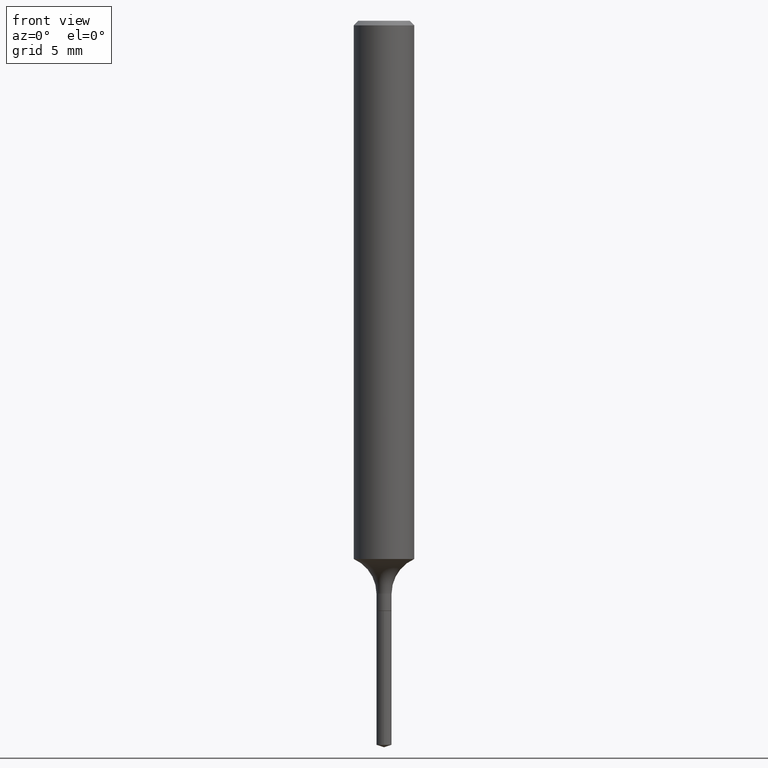
[diagram: clean part render]
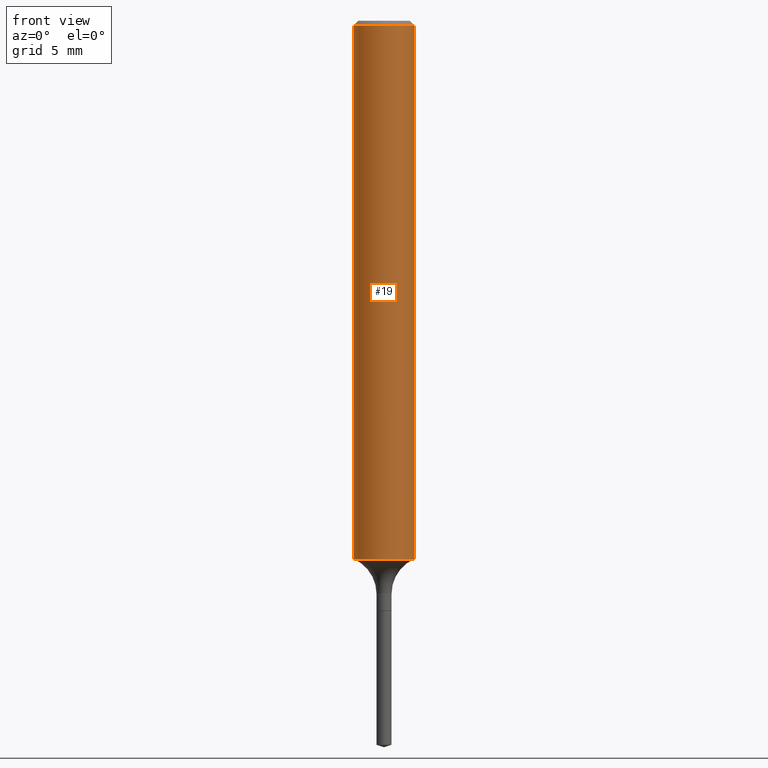
[diagram: same view with one face highlighted and labeled with its STEP entity id]
A machine part, front view. The second image highlights one B-rep face of the part: STEP entity #19.
In plain terms, the highlighted cylindrical surface (edge-blend (fillet) strip) has radius 1.5875 mm, axis along (-0, 0, 1).
Its self-contained STEP definition (entity closure, byte-faithful):
#19 = ADVANCED_FACE ( 'NONE', ( #109 ), #370, .T. ) ;
#35 = CARTESIAN_POINT ( 'NONE',  ( 0.000000000000000000, 0.000000000000000000, 0.000000000000000000 ) ) ;
#46 = AXIS2_PLACEMENT_3D ( 'NONE', #35, #265, #413 ) ;
#64 = LINE ( 'NONE', #362, #267 ) ;
#86 = AXIS2_PLACEMENT_3D ( 'NONE', #456, #205, #305 ) ;
#103 = CIRCLE ( 'NONE', #86, 0.06250000000000000000 ) ;
#109 = FACE_OUTER_BOUND ( 'NONE', #364, .T. ) ;
#125 = EDGE_CURVE ( 'NONE', #135, #490, #103, .T. ) ;
#129 = CIRCLE ( 'NONE', #215, 0.06250000000000012490 ) ;
#135 = VERTEX_POINT ( 'NONE', #458 ) ;
#156 = ORIENTED_EDGE ( 'NONE', *, *, #339, .F. ) ;
#178 = LINE ( 'NONE', #319, #203 ) ;
#186 = VERTEX_POINT ( 'NONE', #352 ) ;
#188 = VERTEX_POINT ( 'NONE', #243 ) ;
#190 = EDGE_CURVE ( 'NONE', #188, #490, #178, .T. ) ;
#196 = DIRECTION ( 'NONE',  ( -2.445468806185136877E-29, 3.491481338843145188E-15, 1.000000000000000000 ) ) ;
#203 = VECTOR ( 'NONE', #282, 39.37007874015748143 ) ;
#205 = DIRECTION ( 'NONE',  ( -2.445468806185136597E-29, 3.491481338843145583E-15, 1.000000000000000000 ) ) ;
#215 = AXIS2_PLACEMENT_3D ( 'NONE', #314, #469, #430 ) ;
#218 = EDGE_CURVE ( 'NONE', #186, #188, #129, .T. ) ;
#243 = CARTESIAN_POINT ( 'NONE',  ( 0.06250000000000022204, -4.316407555382434945E-15, -1.111268258793735253 ) ) ;
#265 = DIRECTION ( 'NONE',  ( -2.445468806185136597E-29, 3.491481338843145583E-15, 1.000000000000000000 ) ) ;
#267 = VECTOR ( 'NONE', #196, 39.37007874015748143 ) ;
#282 = DIRECTION ( 'NONE',  ( -2.445468806185136877E-29, 3.491481338843145188E-15, 1.000000000000000000 ) ) ;
#305 = DIRECTION ( 'NONE',  ( 1.000000000000000000, -6.982962677686266711E-15, 0.000000000000000000 ) ) ;
#314 = CARTESIAN_POINT ( 'NONE',  ( 2.717571862183751138E-29, -3.879972388027042486E-15, -1.111268258793735253 ) ) ;
#319 = CARTESIAN_POINT ( 'NONE',  ( 0.06250000000000006939, -4.364351673553921624E-16, 3.047610484872463374E-30 ) ) ;
#339 = EDGE_CURVE ( 'NONE', #186, #135, #64, .T. ) ;
#352 = CARTESIAN_POINT ( 'NONE',  ( -0.06250000000000022204, -3.435883178176978292E-15, -1.111268258793735253 ) ) ;
#362 = CARTESIAN_POINT ( 'NONE',  ( -0.06250000000000006939, 4.440892098500631092E-16, -3.074334431409319267E-30 ) ) ;
#364 = EDGE_LOOP ( 'NONE', ( #156, #442, #387, #396 ) ) ;
#370 = CYLINDRICAL_SURFACE ( 'NONE', #46, 0.06250000000000006939 ) ;
#373 = CARTESIAN_POINT ( 'NONE',  ( 0.06250000000000000000, -4.691678049070464390E-16, -0.009375000000000065573 ) ) ;
#387 = ORIENTED_EDGE ( 'NONE', *, *, #190, .T. ) ;
#396 = ORIENTED_EDGE ( 'NONE', *, *, #125, .F. ) ;
#413 = DIRECTION ( 'NONE',  ( 1.000000000000000000, -6.982962677686266711E-15, 4.876176775795935793E-29 ) ) ;
#430 = DIRECTION ( 'NONE',  ( 1.000000000000000000, -6.982962677686264344E-15, 0.000000000000000000 ) ) ;
#442 = ORIENTED_EDGE ( 'NONE', *, *, #218, .T. ) ;
#456 = CARTESIAN_POINT ( 'NONE',  ( 2.292627005798581499E-31, -3.273263755165472033E-17, -0.009375000000000065573 ) ) ;
#458 = CARTESIAN_POINT ( 'NONE',  ( -0.06250000000000000000, -1.512263302939284533E-15, -0.009375000000000065573 ) ) ;
#469 = DIRECTION ( 'NONE',  ( -2.445468806185136597E-29, 3.491481338843145583E-15, 1.000000000000000000 ) ) ;
#490 = VERTEX_POINT ( 'NONE', #373 ) ;